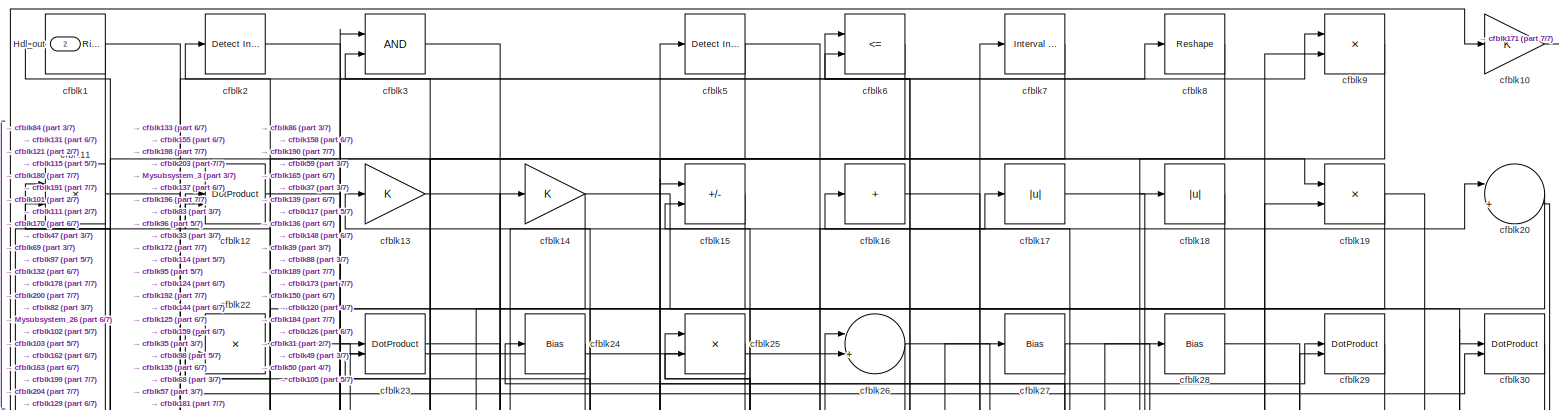
[diagram: root canvas - part 1/7, full width, top band]
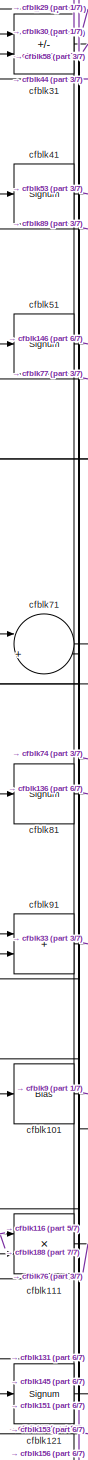
[diagram: root canvas - part 2/7, middle left region]
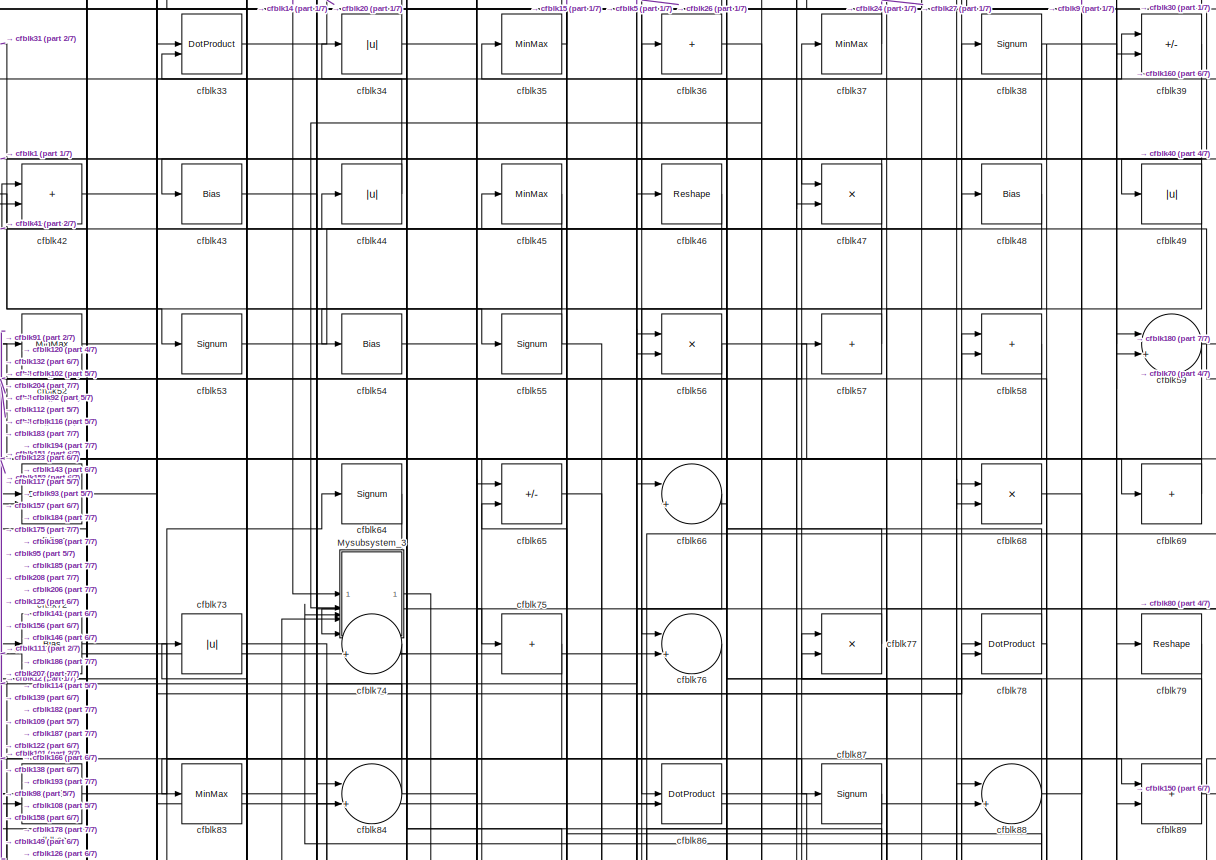
[diagram: root canvas - part 3/7, full width, top band]
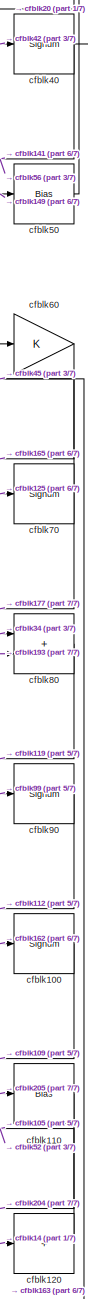
[diagram: root canvas - part 4/7, middle right region]
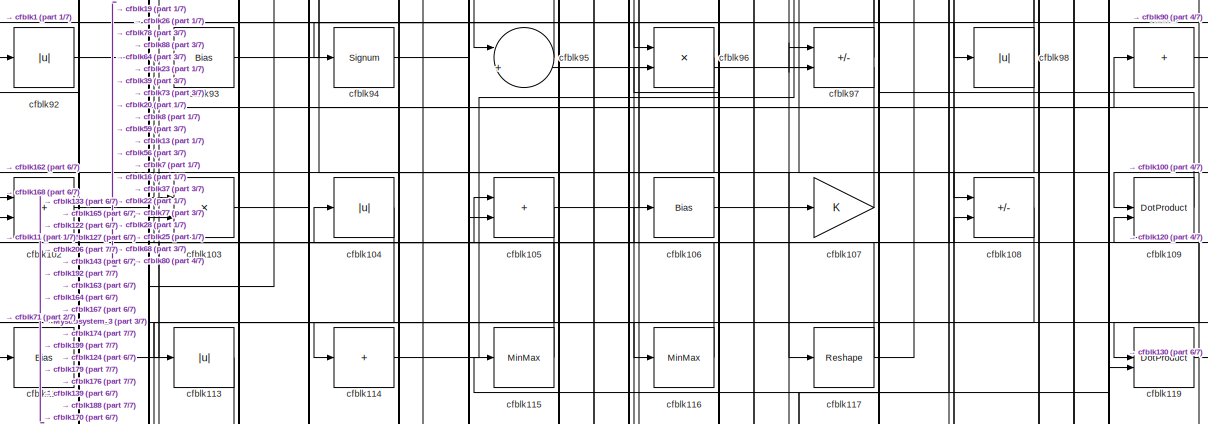
[diagram: root canvas - part 5/7, full width, middle band]
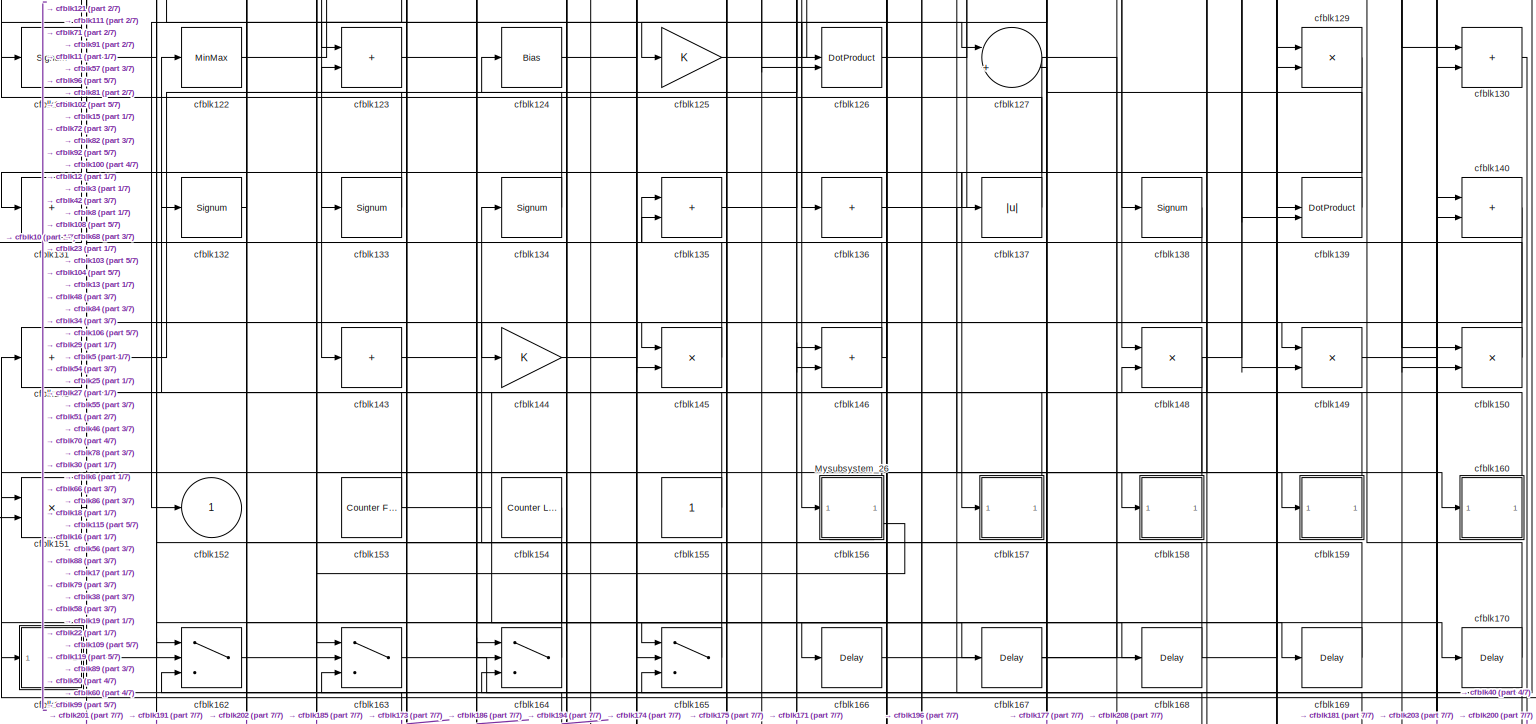
[diagram: root canvas - part 6/7, full width, bottom band]
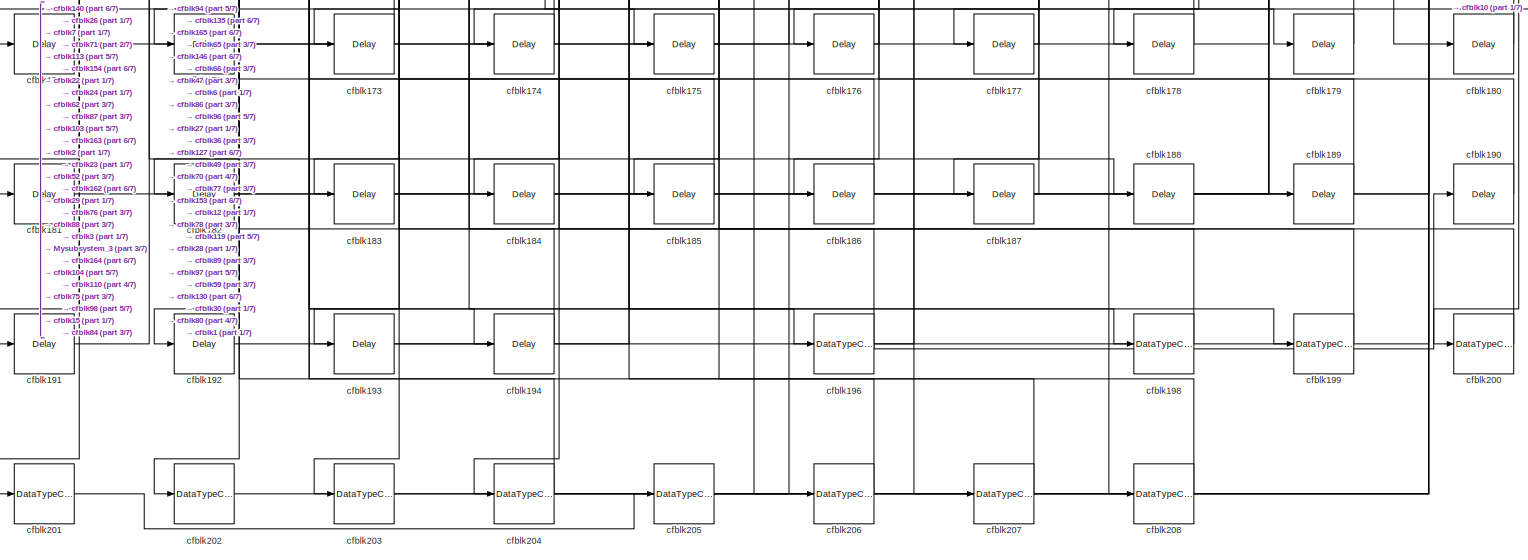
[diagram: root canvas - part 7/7, full width, bottom band]
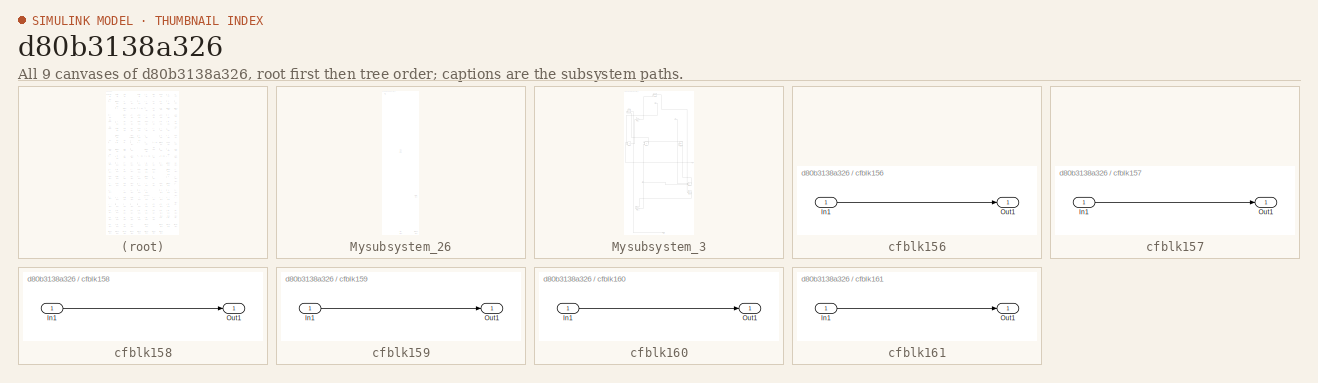
[diagram: thumbnail index - all 9 canvases of the model, root first then tree order]
MODEL slx_d80b3138a326
KIND model
CONFIG AbsTol = auto
CONFIG EnableMultiTasking = off
CONFIG FixedStep = auto
CONFIG MaxStep = auto
CONFIG MinStep = auto
CONFIG RelTol = 1e-3
CONFIG SampleTimeConstraint = Unconstrained
CONFIG SolverName = VariableStepAuto
CONFIG StartTime = 0.0
CONFIG StopTime = 10.0
BLOCK [Outport] Hdl_out
  OutDataTypeStr = uint8
  Port = 2
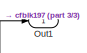
[diagram: Mysubsystem_26 - part 1/3, top left region]
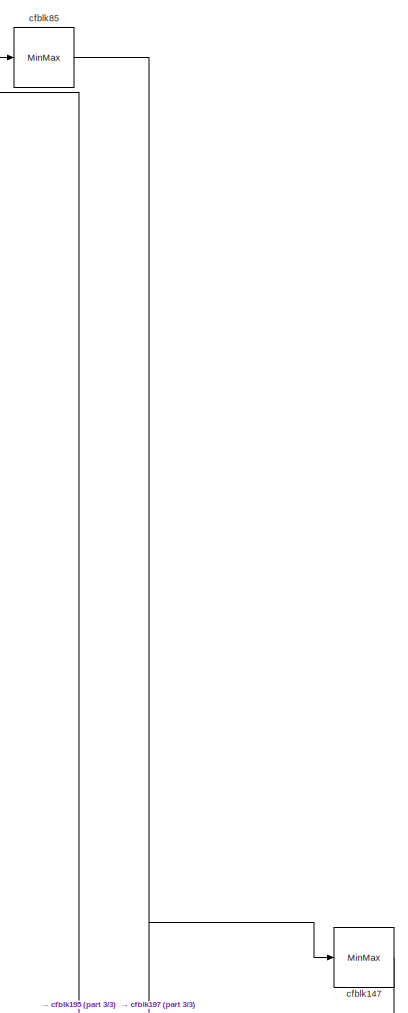
[diagram: Mysubsystem_26 - part 2/3, middle right region]
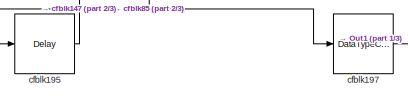
[diagram: Mysubsystem_26 - part 3/3, bottom right region]
BLOCK [SubSystem] Mysubsystem_26
  RTWFcnName = Mysubsystem_26
  RTWFcnNameOpts = User specified
  RTWFileNameOpts = Use function name
  RTWSystemCode = Reusable function
  TreatAsAtomicUnit = on
BLOCK [Outport] Mysubsystem_26/Out1
BLOCK [MinMax] Mysubsystem_26/cfblk147
BLOCK [Delay] Mysubsystem_26/cfblk195
  InputPortMap = u0
  SampleTime = 1
BLOCK [DataTypeConversion] Mysubsystem_26/cfblk197
  OutDataTypeStr = uint8
  RndMeth = Floor
  SaturateOnIntegerOverflow = off
BLOCK [MinMax] Mysubsystem_26/cfblk85
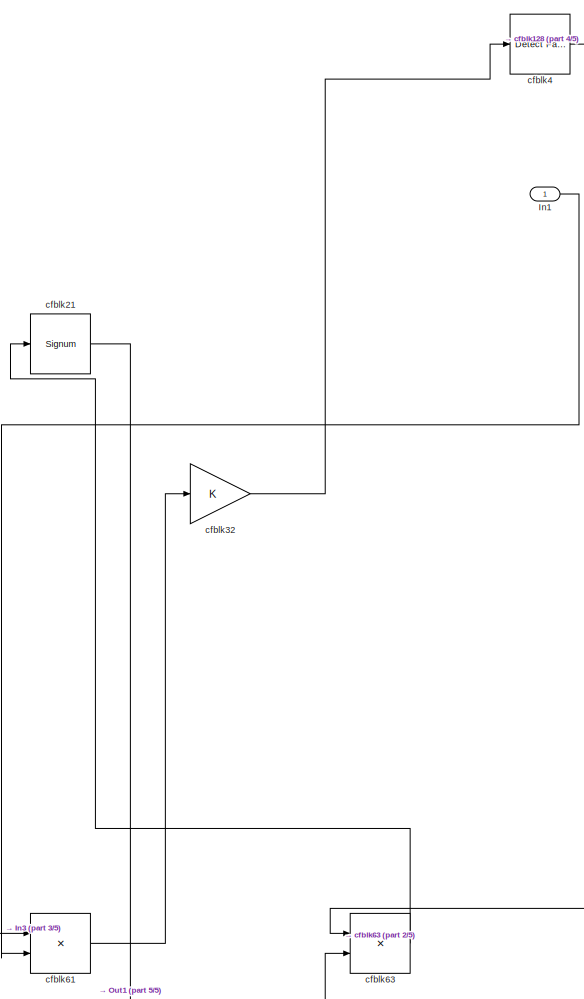
[diagram: Mysubsystem_3 - part 1/5, top left region]
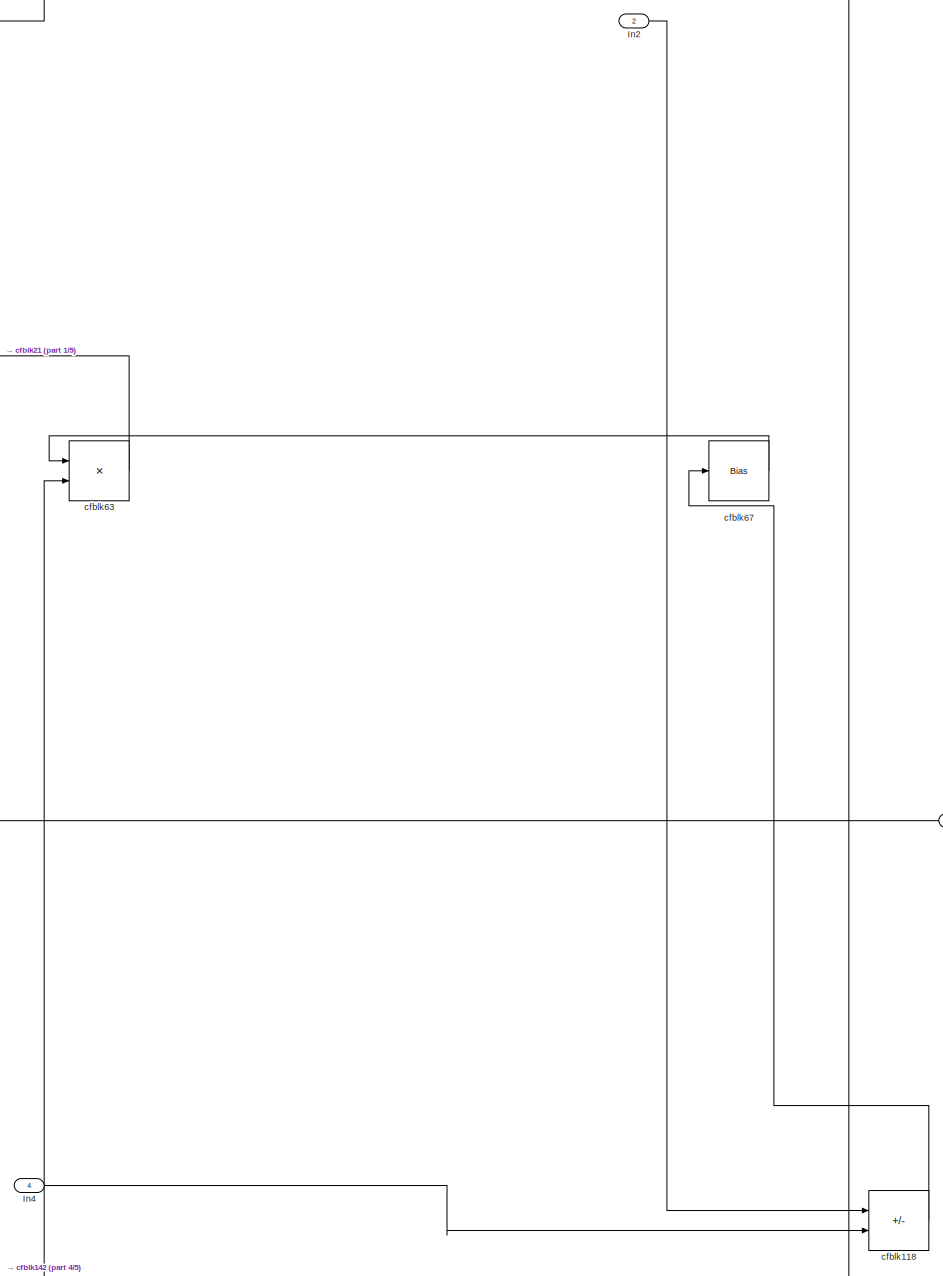
[diagram: Mysubsystem_3 - part 2/5, central region]
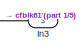
[diagram: Mysubsystem_3 - part 3/5, middle right region]
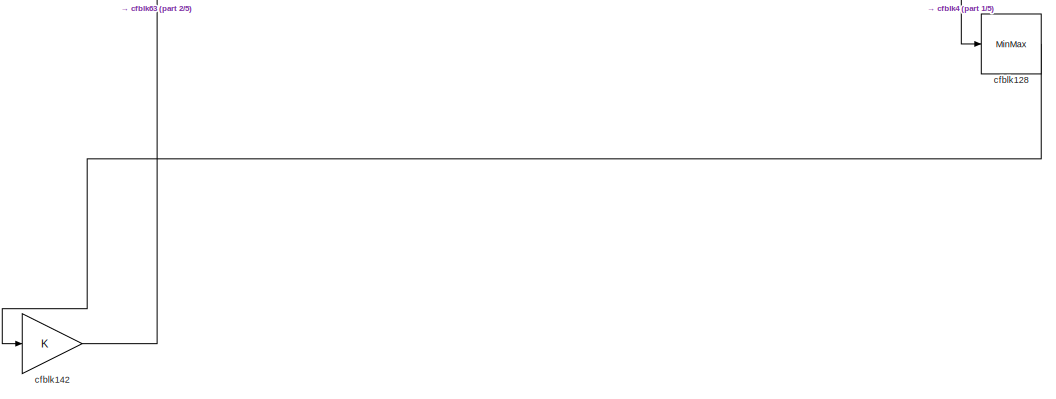
[diagram: Mysubsystem_3 - part 4/5, full width, bottom band]
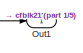
[diagram: Mysubsystem_3 - part 5/5, bottom center region]
BLOCK [SubSystem] Mysubsystem_3
  RTWFcnName = Mysubsystem_3
  RTWFcnNameOpts = User specified
  RTWFileNameOpts = Use function name
  RTWSystemCode = Reusable function
  TreatAsAtomicUnit = on
BLOCK [Inport] Mysubsystem_3/In1
BLOCK [Inport] Mysubsystem_3/In2
  Port = 2
BLOCK [Inport] Mysubsystem_3/In3
  Port = 3
BLOCK [Inport] Mysubsystem_3/In4
  Port = 4
BLOCK [Outport] Mysubsystem_3/Out1
BLOCK [Sum] Mysubsystem_3/cfblk118
  IconShape = rectangular
  Inputs = +-
BLOCK [MinMax] Mysubsystem_3/cfblk128
BLOCK [Gain] Mysubsystem_3/cfblk142
BLOCK [Signum] Mysubsystem_3/cfblk21
BLOCK [Gain] Mysubsystem_3/cfblk32
BLOCK [Reference] Mysubsystem_3/cfblk4  REF=hdlsllib/Logic and Bit
Operations/Detect Fall
Nonpositive
  SourceBlock = hdlsllib/Logic and Bit\nOperations/Detect Fall\nNonpositive
  SourceType = Detect Fall Nonpositive
BLOCK [Product] Mysubsystem_3/cfblk61
  Inputs = */
  RndMeth = Zero
  SaturateOnIntegerOverflow = on
BLOCK [Product] Mysubsystem_3/cfblk63
  Inputs = */
  RndMeth = Zero
  SaturateOnIntegerOverflow = on
BLOCK [Bias] Mysubsystem_3/cfblk67
  Bias = 0.0
  SaturateOnIntegerOverflow = off
BLOCK [Reference] cfblk1  REF=hdlsllib/Logic and Bit
Operations/Detect Rise
Positive
  SourceBlock = hdlsllib/Logic and Bit\nOperations/Detect Rise\nPositive
  SourceType = Detect Rise Positive
BLOCK [Gain] cfblk10
  OutDataTypeStr = uint8
BLOCK [Signum] cfblk100
BLOCK [Bias] cfblk101
  Bias = 0.0
  SaturateOnIntegerOverflow = off
BLOCK [Sum] cfblk102
  IconShape = rectangular
  OutDataTypeStr = uint8
BLOCK [Product] cfblk103
  Inputs = */
  OutDataTypeStr = uint8
  RndMeth = Zero
  SaturateOnIntegerOverflow = on
BLOCK [Abs] cfblk104
  OutDataTypeStr = uint8
  SaturateOnIntegerOverflow = off
BLOCK [Sum] cfblk105
  IconShape = rectangular
  OutDataTypeStr = uint8
BLOCK [Bias] cfblk106
  Bias = 0.0
  SaturateOnIntegerOverflow = off
BLOCK [Gain] cfblk107
  OutDataTypeStr = uint8
BLOCK [Sum] cfblk108
  IconShape = rectangular
  Inputs = +-
  OutDataTypeStr = uint8
BLOCK [DotProduct] cfblk109
  OutDataTypeStr = uint8
BLOCK [Product] cfblk11
  Inputs = */
  OutDataTypeStr = uint8
  RndMeth = Zero
  SaturateOnIntegerOverflow = on
BLOCK [Bias] cfblk110
  Bias = 0.0
  SaturateOnIntegerOverflow = off
BLOCK [Product] cfblk111
  Inputs = */
  OutDataTypeStr = uint8
  RndMeth = Zero
  SaturateOnIntegerOverflow = on
BLOCK [Bias] cfblk112
  Bias = 0.0
  SaturateOnIntegerOverflow = off
BLOCK [Abs] cfblk113
  OutDataTypeStr = uint8
  SaturateOnIntegerOverflow = off
BLOCK [Sum] cfblk114
  IconShape = rectangular
  Inputs = +
  OutDataTypeStr = uint8
BLOCK [MinMax] cfblk115
  OutDataTypeStr = uint8
BLOCK [MinMax] cfblk116
  OutDataTypeStr = uint8
BLOCK [Reshape] cfblk117
BLOCK [DotProduct] cfblk119
  OutDataTypeStr = uint8
BLOCK [DotProduct] cfblk12
  OutDataTypeStr = uint8
BLOCK [Sum] cfblk120
  IconShape = rectangular
  Inputs = +
  OutDataTypeStr = uint8
BLOCK [Signum] cfblk121
BLOCK [MinMax] cfblk122
  OutDataTypeStr = uint8
BLOCK [Sum] cfblk123
  IconShape = rectangular
  OutDataTypeStr = uint8
BLOCK [Bias] cfblk124
  Bias = 0.0
  SaturateOnIntegerOverflow = off
BLOCK [Gain] cfblk125
  OutDataTypeStr = uint8
BLOCK [DotProduct] cfblk126
  OutDataTypeStr = uint8
BLOCK [Sum] cfblk127
  Inputs = |++
  OutDataTypeStr = uint8
BLOCK [Product] cfblk129
  Inputs = */
  OutDataTypeStr = uint8
  RndMeth = Zero
  SaturateOnIntegerOverflow = on
BLOCK [Gain] cfblk13
  OutDataTypeStr = uint8
BLOCK [Sum] cfblk130
  IconShape = rectangular
  OutDataTypeStr = uint8
BLOCK [Sum] cfblk131
  IconShape = rectangular
  Inputs = +
  OutDataTypeStr = uint8
BLOCK [Signum] cfblk132
BLOCK [Signum] cfblk133
BLOCK [Signum] cfblk134
BLOCK [Sum] cfblk135
  IconShape = rectangular
  OutDataTypeStr = uint8
BLOCK [Sum] cfblk136
  IconShape = rectangular
  Inputs = +
  OutDataTypeStr = uint8
BLOCK [Abs] cfblk137
  OutDataTypeStr = uint8
  SaturateOnIntegerOverflow = off
BLOCK [Signum] cfblk138
BLOCK [DotProduct] cfblk139
  OutDataTypeStr = uint8
BLOCK [Gain] cfblk14
  OutDataTypeStr = uint8
BLOCK [Sum] cfblk140
  IconShape = rectangular
  OutDataTypeStr = uint8
BLOCK [Sum] cfblk141
  IconShape = rectangular
  Inputs = +
  OutDataTypeStr = uint8
BLOCK [Sum] cfblk143
  IconShape = rectangular
  Inputs = +
  OutDataTypeStr = uint8
BLOCK [Gain] cfblk144
  OutDataTypeStr = uint8
BLOCK [Product] cfblk145
  Inputs = */
  OutDataTypeStr = uint8
  RndMeth = Zero
  SaturateOnIntegerOverflow = on
BLOCK [Sum] cfblk146
  IconShape = rectangular
  OutDataTypeStr = uint8
BLOCK [Product] cfblk148
  Inputs = */
  OutDataTypeStr = uint8
  RndMeth = Zero
  SaturateOnIntegerOverflow = on
BLOCK [Product] cfblk149
  Inputs = */
  OutDataTypeStr = uint8
  RndMeth = Zero
  SaturateOnIntegerOverflow = on
BLOCK [Sum] cfblk15
  IconShape = rectangular
  Inputs = +-
  OutDataTypeStr = uint8
BLOCK [Product] cfblk150
  Inputs = */
  OutDataTypeStr = uint8
  RndMeth = Zero
  SaturateOnIntegerOverflow = on
BLOCK [Product] cfblk151
  Inputs = */
  OutDataTypeStr = uint8
  RndMeth = Zero
  SaturateOnIntegerOverflow = on
BLOCK [Outport] cfblk152
  OutDataTypeStr = uint8
  VectorParamsAs1DForOutWhenUnconnected = off
BLOCK [Reference] cfblk153  REF=hdlsllib/Sources/Counter
Free-Running
  SourceBlock = hdlsllib/Sources/Counter\nFree-Running
  SourceType = Counter Free-Running
BLOCK [Reference] cfblk154  REF=hdlsllib/Sources/Counter
Limited
  SourceBlock = hdlsllib/Sources/Counter\nLimited
  SourceType = Counter Limited
BLOCK [Constant] cfblk155
  OutDataTypeStr = uint8
  SampleTime = -1
BLOCK [SubSystem] cfblk156
  LibrarySourceBlock = hdlsllib/Ports &\nSubsystems/Subsystem
BLOCK [Inport] cfblk156/In1
BLOCK [Outport] cfblk156/Out1
BLOCK [SubSystem] cfblk157
  LibrarySourceBlock = hdlsllib/Ports &\nSubsystems/Subsystem
BLOCK [Inport] cfblk157/In1
BLOCK [Outport] cfblk157/Out1
BLOCK [SubSystem] cfblk158
  LibrarySourceBlock = hdlsllib/Ports &\nSubsystems/Subsystem
BLOCK [Inport] cfblk158/In1
BLOCK [Outport] cfblk158/Out1
BLOCK [SubSystem] cfblk159
  LibrarySourceBlock = hdlsllib/Ports &\nSubsystems/Subsystem
BLOCK [Inport] cfblk159/In1
BLOCK [Outport] cfblk159/Out1
BLOCK [Sum] cfblk16
  IconShape = rectangular
  Inputs = +
  OutDataTypeStr = uint8
BLOCK [SubSystem] cfblk160
  LibrarySourceBlock = hdlsllib/Ports &\nSubsystems/Subsystem
BLOCK [Inport] cfblk160/In1
BLOCK [Outport] cfblk160/Out1
BLOCK [SubSystem] cfblk161
  LibrarySourceBlock = hdlsllib/Ports &\nSubsystems/Subsystem
BLOCK [Inport] cfblk161/In1
BLOCK [Outport] cfblk161/Out1
BLOCK [Switch] cfblk162
  InputSameDT = off
  OutDataTypeStr = uint8
  SaturateOnIntegerOverflow = off
BLOCK [Switch] cfblk163
  InputSameDT = off
  OutDataTypeStr = uint8
  SaturateOnIntegerOverflow = off
BLOCK [Switch] cfblk164
  InputSameDT = off
  OutDataTypeStr = uint8
  SaturateOnIntegerOverflow = off
BLOCK [Switch] cfblk165
  InputSameDT = off
  OutDataTypeStr = uint8
  SaturateOnIntegerOverflow = off
BLOCK [Delay] cfblk166
  InputPortMap = u0
  SampleTime = 1
BLOCK [Delay] cfblk167
  InputPortMap = u0
  SampleTime = 1
BLOCK [Delay] cfblk168
  InputPortMap = u0
  SampleTime = 1
BLOCK [Delay] cfblk169
  InputPortMap = u0
  SampleTime = 1
BLOCK [Abs] cfblk17
  OutDataTypeStr = uint8
  SaturateOnIntegerOverflow = off
BLOCK [Delay] cfblk170
  InputPortMap = u0
  SampleTime = 1
BLOCK [Delay] cfblk171
  InputPortMap = u0
  SampleTime = 1
BLOCK [Delay] cfblk172
  InputPortMap = u0
  SampleTime = 1
BLOCK [Delay] cfblk173
  InputPortMap = u0
  SampleTime = 1
BLOCK [Delay] cfblk174
  InputPortMap = u0
  SampleTime = 1
BLOCK [Delay] cfblk175
  InputPortMap = u0
  SampleTime = 1
BLOCK [Delay] cfblk176
  InputPortMap = u0
  SampleTime = 1
BLOCK [Delay] cfblk177
  InputPortMap = u0
  SampleTime = 1
BLOCK [Delay] cfblk178
  InputPortMap = u0
  SampleTime = 1
BLOCK [Delay] cfblk179
  InputPortMap = u0
  SampleTime = 1
BLOCK [Abs] cfblk18
  OutDataTypeStr = uint8
  SaturateOnIntegerOverflow = off
BLOCK [Delay] cfblk180
  InputPortMap = u0
  SampleTime = 1
BLOCK [Delay] cfblk181
  InputPortMap = u0
  SampleTime = 1
BLOCK [Delay] cfblk182
  InputPortMap = u0
  SampleTime = 1
BLOCK [Delay] cfblk183
  InputPortMap = u0
  SampleTime = 1
BLOCK [Delay] cfblk184
  InputPortMap = u0
  SampleTime = 1
BLOCK [Delay] cfblk185
  InputPortMap = u0
  SampleTime = 1
BLOCK [Delay] cfblk186
  InputPortMap = u0
  SampleTime = 1
BLOCK [Delay] cfblk187
  InputPortMap = u0
  SampleTime = 1
BLOCK [Delay] cfblk188
  InputPortMap = u0
  SampleTime = 1
BLOCK [Delay] cfblk189
  InputPortMap = u0
  SampleTime = 1
BLOCK [Product] cfblk19
  Inputs = */
  OutDataTypeStr = uint8
  RndMeth = Zero
  SaturateOnIntegerOverflow = on
BLOCK [Delay] cfblk190
  InputPortMap = u0
  SampleTime = 1
BLOCK [Delay] cfblk191
  InputPortMap = u0
  SampleTime = 1
BLOCK [Delay] cfblk192
  InputPortMap = u0
  SampleTime = 1
BLOCK [Delay] cfblk193
  InputPortMap = u0
  SampleTime = 1
BLOCK [Delay] cfblk194
  InputPortMap = u0
  SampleTime = 1
BLOCK [DataTypeConversion] cfblk196
  OutDataTypeStr = uint8
  RndMeth = Floor
  SaturateOnIntegerOverflow = off
BLOCK [DataTypeConversion] cfblk198
  OutDataTypeStr = uint8
  RndMeth = Floor
  SaturateOnIntegerOverflow = off
BLOCK [DataTypeConversion] cfblk199
  OutDataTypeStr = uint8
  RndMeth = Floor
  SaturateOnIntegerOverflow = off
BLOCK [Reference] cfblk2  REF=simulink/Logic and Bit
Operations/Detect
Increase
  LibrarySourceBlock = hdlsllib/Logic and Bit\nOperations/Detect\nIncrease
  SourceBlock = simulink/Logic and Bit\nOperations/Detect\nIncrease
  SourceType = Detect Increase
BLOCK [Sum] cfblk20
  Inputs = |++
  OutDataTypeStr = uint8
BLOCK [DataTypeConversion] cfblk200
  OutDataTypeStr = uint8
  RndMeth = Floor
  SaturateOnIntegerOverflow = off
BLOCK [DataTypeConversion] cfblk201
  OutDataTypeStr = uint8
  RndMeth = Floor
  SaturateOnIntegerOverflow = off
BLOCK [DataTypeConversion] cfblk202
  OutDataTypeStr = uint8
  RndMeth = Floor
  SaturateOnIntegerOverflow = off
BLOCK [DataTypeConversion] cfblk203
  OutDataTypeStr = uint8
  RndMeth = Floor
  SaturateOnIntegerOverflow = off
BLOCK [DataTypeConversion] cfblk204
  OutDataTypeStr = uint8
  RndMeth = Floor
  SaturateOnIntegerOverflow = off
BLOCK [DataTypeConversion] cfblk205
  OutDataTypeStr = uint8
  RndMeth = Floor
  SaturateOnIntegerOverflow = off
BLOCK [DataTypeConversion] cfblk206
  OutDataTypeStr = uint8
  RndMeth = Floor
  SaturateOnIntegerOverflow = off
BLOCK [DataTypeConversion] cfblk207
  OutDataTypeStr = uint8
  RndMeth = Floor
  SaturateOnIntegerOverflow = off
BLOCK [DataTypeConversion] cfblk208
  OutDataTypeStr = uint8
  RndMeth = Floor
  SaturateOnIntegerOverflow = off
BLOCK [Product] cfblk22
  Inputs = */
  OutDataTypeStr = uint8
  RndMeth = Zero
  SaturateOnIntegerOverflow = on
BLOCK [DotProduct] cfblk23
  OutDataTypeStr = uint8
BLOCK [Bias] cfblk24
  Bias = 0.0
  SaturateOnIntegerOverflow = off
BLOCK [Product] cfblk25
  Inputs = */
  OutDataTypeStr = uint8
  RndMeth = Zero
  SaturateOnIntegerOverflow = on
BLOCK [Sum] cfblk26
  Inputs = |++
  OutDataTypeStr = uint8
BLOCK [Bias] cfblk27
  Bias = 0.0
  SaturateOnIntegerOverflow = off
BLOCK [Bias] cfblk28
  Bias = 0.0
  SaturateOnIntegerOverflow = off
BLOCK [DotProduct] cfblk29
  OutDataTypeStr = uint8
BLOCK [Logic] cfblk3
  AllPortsSameDT = off
  OutDataTypeStr = boolean
BLOCK [DotProduct] cfblk30
  OutDataTypeStr = uint8
BLOCK [Sum] cfblk31
  IconShape = rectangular
  Inputs = +-
  OutDataTypeStr = uint8
BLOCK [DotProduct] cfblk33
  OutDataTypeStr = uint8
BLOCK [Abs] cfblk34
  OutDataTypeStr = uint8
  SaturateOnIntegerOverflow = off
BLOCK [MinMax] cfblk35
  OutDataTypeStr = uint8
BLOCK [Sum] cfblk36
  IconShape = rectangular
  Inputs = +
  OutDataTypeStr = uint8
BLOCK [MinMax] cfblk37
  OutDataTypeStr = uint8
BLOCK [Signum] cfblk38
BLOCK [Sum] cfblk39
  IconShape = rectangular
  Inputs = +-
  OutDataTypeStr = uint8
BLOCK [Signum] cfblk40
BLOCK [Signum] cfblk41
BLOCK [Sum] cfblk42
  IconShape = rectangular
  OutDataTypeStr = uint8
BLOCK [Bias] cfblk43
  Bias = 0.0
  SaturateOnIntegerOverflow = off
BLOCK [Abs] cfblk44
  OutDataTypeStr = uint8
  SaturateOnIntegerOverflow = off
BLOCK [MinMax] cfblk45
  OutDataTypeStr = uint8
BLOCK [Reshape] cfblk46
BLOCK [Product] cfblk47
  Inputs = */
  OutDataTypeStr = uint8
  RndMeth = Zero
  SaturateOnIntegerOverflow = on
BLOCK [Bias] cfblk48
  Bias = 0.0
  SaturateOnIntegerOverflow = off
BLOCK [Abs] cfblk49
  OutDataTypeStr = uint8
  SaturateOnIntegerOverflow = off
BLOCK [Reference] cfblk5  REF=simulink/Logic and Bit
Operations/Detect
Increase
  LibrarySourceBlock = hdlsllib/Logic and Bit\nOperations/Detect\nIncrease
  SourceBlock = simulink/Logic and Bit\nOperations/Detect\nIncrease
  SourceType = Detect Increase
BLOCK [Bias] cfblk50
  Bias = 0.0
  SaturateOnIntegerOverflow = off
BLOCK [Signum] cfblk51
BLOCK [MinMax] cfblk52
  OutDataTypeStr = uint8
BLOCK [Signum] cfblk53
BLOCK [Bias] cfblk54
  Bias = 0.0
  SaturateOnIntegerOverflow = off
BLOCK [Signum] cfblk55
BLOCK [Product] cfblk56
  Inputs = */
  OutDataTypeStr = uint8
  RndMeth = Zero
  SaturateOnIntegerOverflow = on
BLOCK [Sum] cfblk57
  IconShape = rectangular
  Inputs = +
  OutDataTypeStr = uint8
BLOCK [Sum] cfblk58
  IconShape = rectangular
  OutDataTypeStr = uint8
BLOCK [Sum] cfblk59
  Inputs = |++
  OutDataTypeStr = uint8
BLOCK [RelationalOperator] cfblk6
  InputSameDT = off
  Operator = <=
  OutDataTypeStr = boolean
BLOCK [Gain] cfblk60
  OutDataTypeStr = uint8
BLOCK [DotProduct] cfblk62
  OutDataTypeStr = uint8
BLOCK [Signum] cfblk64
BLOCK [Sum] cfblk65
  IconShape = rectangular
  Inputs = +-
  OutDataTypeStr = uint8
BLOCK [Sum] cfblk66
  Inputs = |++
  OutDataTypeStr = uint8
BLOCK [Product] cfblk68
  Inputs = */
  OutDataTypeStr = uint8
  RndMeth = Zero
  SaturateOnIntegerOverflow = on
BLOCK [Sum] cfblk69
  IconShape = rectangular
  Inputs = +
  OutDataTypeStr = uint8
BLOCK [Reference] cfblk7  REF=hdlsllib/Logic and Bit
Operations/Interval Test
  SourceBlock = hdlsllib/Logic and Bit\nOperations/Interval Test
  SourceType = Interval Test
BLOCK [Signum] cfblk70
BLOCK [Sum] cfblk71
  Inputs = |++
  OutDataTypeStr = uint8
BLOCK [Bias] cfblk72
  Bias = 0.0
  SaturateOnIntegerOverflow = off
BLOCK [Abs] cfblk73
  OutDataTypeStr = uint8
  SaturateOnIntegerOverflow = off
BLOCK [Sum] cfblk74
  Inputs = |++
  OutDataTypeStr = uint8
BLOCK [Sum] cfblk75
  IconShape = rectangular
  Inputs = +
  OutDataTypeStr = uint8
BLOCK [Sum] cfblk76
  Inputs = |++
  OutDataTypeStr = uint8
BLOCK [Product] cfblk77
  Inputs = */
  OutDataTypeStr = uint8
  RndMeth = Zero
  SaturateOnIntegerOverflow = on
BLOCK [DotProduct] cfblk78
  OutDataTypeStr = uint8
BLOCK [Reshape] cfblk79
BLOCK [Reshape] cfblk8
BLOCK [Sum] cfblk80
  IconShape = rectangular
  OutDataTypeStr = uint8
BLOCK [Signum] cfblk81
BLOCK [DotProduct] cfblk82
  OutDataTypeStr = uint8
BLOCK [MinMax] cfblk83
  OutDataTypeStr = uint8
BLOCK [Sum] cfblk84
  Inputs = |++
  OutDataTypeStr = uint8
BLOCK [DotProduct] cfblk86
  OutDataTypeStr = uint8
BLOCK [Signum] cfblk87
BLOCK [Sum] cfblk88
  Inputs = |++
  OutDataTypeStr = uint8
BLOCK [Sum] cfblk89
  IconShape = rectangular
  OutDataTypeStr = uint8
BLOCK [Product] cfblk9
  Inputs = */
  OutDataTypeStr = uint8
  RndMeth = Zero
  SaturateOnIntegerOverflow = on
BLOCK [Signum] cfblk90
BLOCK [Sum] cfblk91
  IconShape = rectangular
  OutDataTypeStr = uint8
BLOCK [Abs] cfblk92
  OutDataTypeStr = uint8
  SaturateOnIntegerOverflow = off
BLOCK [Bias] cfblk93
  Bias = 0.0
  SaturateOnIntegerOverflow = off
BLOCK [Signum] cfblk94
BLOCK [Sum] cfblk95
  Inputs = |++
  OutDataTypeStr = uint8
BLOCK [Product] cfblk96
  Inputs = */
  OutDataTypeStr = uint8
  RndMeth = Zero
  SaturateOnIntegerOverflow = on
BLOCK [Sum] cfblk97
  IconShape = rectangular
  Inputs = +-
  OutDataTypeStr = uint8
BLOCK [Abs] cfblk98
  OutDataTypeStr = uint8
  SaturateOnIntegerOverflow = off
BLOCK [Sum] cfblk99
  IconShape = rectangular
  Inputs = +
  OutDataTypeStr = uint8
LINE Mysubsystem_26/cfblk147:1 -> Mysubsystem_26/cfblk195:1
LINE Mysubsystem_26/cfblk195:1 -> Mysubsystem_26/cfblk85:1
LINE Mysubsystem_26/cfblk197:1 -> Mysubsystem_26/Out1:1
NET Mysubsystem_26/cfblk85:1 -> Mysubsystem_26/cfblk147:1, Mysubsystem_26/cfblk197:1
LINE Mysubsystem_26:1 -> cfblk3:1
LINE Mysubsystem_3/In1:1 -> Mysubsystem_3/cfblk61:2
LINE Mysubsystem_3/In2:1 -> Mysubsystem_3/cfblk118:1
LINE Mysubsystem_3/In3:1 -> Mysubsystem_3/cfblk61:1
LINE Mysubsystem_3/In4:1 -> Mysubsystem_3/cfblk118:2
LINE Mysubsystem_3/cfblk118:1 -> Mysubsystem_3/cfblk67:1
LINE Mysubsystem_3/cfblk128:1 -> Mysubsystem_3/cfblk142:1
LINE Mysubsystem_3/cfblk142:1 -> Mysubsystem_3/cfblk63:2
LINE Mysubsystem_3/cfblk21:1 -> Mysubsystem_3/Out1:1
LINE Mysubsystem_3/cfblk32:1 -> Mysubsystem_3/cfblk4:1
LINE Mysubsystem_3/cfblk4:1 -> Mysubsystem_3/cfblk128:1
LINE Mysubsystem_3/cfblk61:1 -> Mysubsystem_3/cfblk32:1
LINE Mysubsystem_3/cfblk63:1 -> Mysubsystem_3/cfblk21:1
LINE Mysubsystem_3/cfblk67:1 -> Mysubsystem_3/cfblk63:1
LINE Mysubsystem_3:1 -> cfblk175:1
LINE cfblk100:1 -> cfblk109:1
LINE cfblk101:1 -> cfblk9:1
NET cfblk102:1 -> cfblk26:2, cfblk88:2
LINE cfblk103:1 -> cfblk167:1
LINE cfblk104:1 -> cfblk164:2
NET cfblk105:1 -> cfblk113:1, cfblk7:1
LINE cfblk106:1 -> cfblk107:1
LINE cfblk107:1 -> cfblk95:2
LINE cfblk108:1 -> cfblk143:1
LINE cfblk109:1 -> cfblk77:1
LINE cfblk10:1 -> cfblk171:1
LINE cfblk110:1 -> cfblk204:1
NET cfblk111:1 -> cfblk30:2, cfblk76:2
NET cfblk112:1 -> cfblk56:1, cfblk64:1
LINE cfblk113:1 -> cfblk192:1
LINE cfblk114:1 -> cfblk37:1
LINE cfblk115:1 -> cfblk11:1
LINE cfblk116:1 -> cfblk73:1
NET cfblk117:1 -> cfblk28:1, cfblk93:1
LINE cfblk119:1 -> cfblk130:1
LINE cfblk11:1 -> cfblk170:1
NET cfblk120:1 -> cfblk105:1, cfblk52:1
NET cfblk121:1 -> Hdl_out:1, cfblk11:2, cfblk131:1, cfblk58:2
NET cfblk122:1 -> cfblk108:2, cfblk68:1
NET cfblk123:1 -> cfblk168:1, cfblk84:2
NET cfblk124:1 -> cfblk106:1, cfblk5:1
NET cfblk125:1 -> cfblk70:1, cfblk78:1
LINE cfblk126:1 -> cfblk79:1
NET cfblk127:1 -> cfblk161:1, cfblk169:1
LINE cfblk129:1 -> cfblk157:1
LINE cfblk12:1 -> cfblk163:1
LINE cfblk130:1 -> cfblk200:1
LINE cfblk131:1 -> cfblk10:1
LINE cfblk132:1 -> cfblk72:1
LINE cfblk133:1 -> cfblk102:2
LINE cfblk134:1 -> cfblk124:1
LINE cfblk135:1 -> cfblk17:1
NET cfblk136:1 -> cfblk159:1, cfblk18:1
LINE cfblk137:1 -> cfblk81:1
LINE cfblk138:1 -> cfblk145:1
NET cfblk139:1 -> cfblk115:1, cfblk16:1
LINE cfblk13:1 -> cfblk137:1
LINE cfblk140:1 -> cfblk201:1
LINE cfblk141:1 -> cfblk46:1
LINE cfblk143:1 -> cfblk48:1
LINE cfblk144:1 -> cfblk29:1
LINE cfblk145:1 -> cfblk91:1
NET cfblk146:1 -> cfblk135:1, cfblk66:2
NET cfblk148:1 -> cfblk166:1, cfblk19:2
LINE cfblk149:1 -> cfblk50:1
NET cfblk14:1 -> Mysubsystem_3:1, cfblk120:1
LINE cfblk150:1 -> cfblk42:1
LINE cfblk151:1 -> cfblk71:1
NET cfblk153:1 -> cfblk111:2, cfblk148:2, cfblk208:1
LINE cfblk154:1 -> cfblk202:1
NET cfblk155:1 -> cfblk151:1, cfblk23:2
LINE cfblk156/In1:1 -> cfblk156/Out1:1
NET cfblk156:1 -> cfblk122:1, cfblk71:2
LINE cfblk157/In1:1 -> cfblk157/Out1:1
NET cfblk157:1 -> cfblk34:1, cfblk82:2
LINE cfblk158/In1:1 -> cfblk158/Out1:1
LINE cfblk158:1 -> cfblk6:1
LINE cfblk159/In1:1 -> cfblk159/Out1:1
LINE cfblk159:1 -> cfblk25:1
LINE cfblk15:1 -> cfblk132:1
LINE cfblk160/In1:1 -> cfblk160/Out1:1
LINE cfblk160:1 -> cfblk58:1
LINE cfblk161/In1:1 -> cfblk161/Out1:1
LINE cfblk161:1 -> cfblk57:1
NET cfblk162:1 -> cfblk100:1, cfblk8:1
NET cfblk163:1 -> cfblk60:1, cfblk99:1
LINE cfblk164:1 -> cfblk134:1
LINE cfblk165:1 -> cfblk92:1
LINE cfblk166:1 -> cfblk88:1
LINE cfblk167:1 -> cfblk129:1
LINE cfblk168:1 -> cfblk102:1
LINE cfblk169:1 -> cfblk123:2
LINE cfblk16:1 -> cfblk98:1
LINE cfblk170:1 -> cfblk109:2
LINE cfblk171:1 -> cfblk146:1
LINE cfblk172:1 -> cfblk29:2
LINE cfblk173:1 -> cfblk162:3
LINE cfblk174:1 -> cfblk164:3
LINE cfblk175:1 -> cfblk135:2
LINE cfblk176:1 -> cfblk96:2
LINE cfblk177:1 -> cfblk127:2
LINE cfblk178:1 -> cfblk12:2
LINE cfblk179:1 -> cfblk97:1
NET cfblk17:1 -> cfblk148:1, cfblk19:1
LINE cfblk180:1 -> cfblk1:1
LINE cfblk181:1 -> cfblk130:2
LINE cfblk182:1 -> cfblk84:1
LINE cfblk183:1 -> cfblk89:2
LINE cfblk184:1 -> cfblk30:1
LINE cfblk185:1 -> cfblk163:2
LINE cfblk186:1 -> cfblk163:3
LINE cfblk187:1 -> cfblk77:2
LINE cfblk188:1 -> cfblk119:2
LINE cfblk189:1 -> cfblk22:2
LINE cfblk18:1 -> cfblk125:1
LINE cfblk190:1 -> cfblk6:2
LINE cfblk191:1 -> cfblk162:1
LINE cfblk192:1 -> cfblk15:1
LINE cfblk193:1 -> cfblk80:2
LINE cfblk194:1 -> cfblk164:1
NET cfblk196:1 -> cfblk165:3, cfblk190:1, cfblk27:1
LINE cfblk198:1 -> cfblk3:2
LINE cfblk199:1 -> cfblk104:1
NET cfblk19:1 -> cfblk103:2, cfblk150:1
NET cfblk1:1 -> cfblk47:2, cfblk69:1, cfblk97:2
LINE cfblk200:1 -> cfblk2:1
LINE cfblk201:1 -> cfblk205:1
LINE cfblk202:1 -> cfblk140:1
LINE cfblk203:1 -> cfblk140:2
NET cfblk204:1 -> cfblk23:1, cfblk66:1
LINE cfblk205:1 -> cfblk110:1
NET cfblk206:1 -> cfblk103:1, cfblk62:2
LINE cfblk207:1 -> cfblk65:1
LINE cfblk208:1 -> cfblk65:2
LINE cfblk20:1 -> cfblk114:1
LINE cfblk22:1 -> cfblk129:2
LINE cfblk23:1 -> cfblk96:1
LINE cfblk24:1 -> cfblk172:1
LINE cfblk25:1 -> cfblk144:1
NET cfblk26:1 -> cfblk181:1, cfblk59:1, cfblk86:1
NET cfblk27:1 -> cfblk165:1, cfblk39:2
LINE cfblk28:1 -> cfblk189:1
NET cfblk29:1 -> cfblk121:1, cfblk173:1
LINE cfblk2:1 -> cfblk199:1
NET cfblk30:1 -> cfblk126:1, cfblk31:2, cfblk49:1
LINE cfblk31:1 -> cfblk55:1
LINE cfblk33:1 -> cfblk20:1
LINE cfblk34:1 -> cfblk80:1
LINE cfblk35:1 -> cfblk15:2
NET cfblk36:1 -> Mysubsystem_3:2, cfblk207:1
LINE cfblk37:1 -> cfblk24:1
NET cfblk38:1 -> cfblk149:2, cfblk158:1, cfblk42:2, cfblk59:2
LINE cfblk39:1 -> cfblk76:1
LINE cfblk3:1 -> cfblk196:1
NET cfblk40:1 -> cfblk141:1, cfblk56:2
LINE cfblk41:1 -> cfblk53:1
NET cfblk42:1 -> cfblk160:1, cfblk40:1
LINE cfblk43:1 -> cfblk75:1
LINE cfblk44:1 -> cfblk31:1
LINE cfblk45:1 -> cfblk54:1
LINE cfblk46:1 -> cfblk156:1
NET cfblk47:1 -> cfblk185:1, cfblk186:1, cfblk43:1
NET cfblk48:1 -> cfblk123:1, cfblk74:2
NET cfblk49:1 -> cfblk187:1, cfblk47:1
LINE cfblk50:1 -> cfblk20:2
LINE cfblk51:1 -> cfblk146:2
NET cfblk52:1 -> Mysubsystem_3:4, cfblk194:1
LINE cfblk53:1 -> cfblk38:1
LINE cfblk54:1 -> cfblk149:1
NET cfblk55:1 -> cfblk126:2, cfblk33:2
NET cfblk56:1 -> cfblk151:2, cfblk152:1
LINE cfblk57:1 -> cfblk26:1
LINE cfblk58:1 -> cfblk91:2
NET cfblk59:1 -> cfblk180:1, cfblk95:1
NET cfblk5:1 -> cfblk133:1, cfblk68:2, cfblk83:1
LINE cfblk60:1 -> cfblk165:2
LINE cfblk62:1 -> cfblk44:1
LINE cfblk64:1 -> cfblk74:1
LINE cfblk65:1 -> cfblk206:1
LINE cfblk66:1 -> cfblk86:2
NET cfblk68:1 -> cfblk108:1, cfblk139:2
LINE cfblk69:1 -> cfblk62:1
LINE cfblk6:1 -> cfblk203:1
NET cfblk70:1 -> cfblk177:1, cfblk45:1
NET cfblk71:1 -> cfblk111:1, cfblk116:1, cfblk145:2, cfblk188:1
LINE cfblk72:1 -> cfblk89:1
LINE cfblk73:1 -> cfblk117:1
LINE cfblk74:1 -> cfblk101:1
LINE cfblk75:1 -> cfblk184:1
LINE cfblk76:1 -> cfblk183:1
LINE cfblk77:1 -> cfblk51:1
NET cfblk78:1 -> cfblk178:1, cfblk36:1
LINE cfblk79:1 -> cfblk138:1
LINE cfblk7:1 -> cfblk191:1
LINE cfblk80:1 -> cfblk119:1
LINE cfblk81:1 -> cfblk136:1
LINE cfblk82:1 -> cfblk87:1
LINE cfblk83:1 -> cfblk14:1
NET cfblk84:1 -> cfblk12:1, cfblk198:1
NET cfblk86:1 -> cfblk139:1, cfblk176:1
LINE cfblk87:1 -> cfblk182:1
NET cfblk88:1 -> cfblk193:1, cfblk35:1, cfblk9:2
NET cfblk89:1 -> cfblk150:2, cfblk41:1
LINE cfblk8:1 -> cfblk105:2
LINE cfblk90:1 -> cfblk112:1
LINE cfblk91:1 -> cfblk33:1
NET cfblk92:1 -> cfblk127:1, cfblk78:2
LINE cfblk93:1 -> cfblk39:1
LINE cfblk94:1 -> cfblk179:1
NET cfblk95:1 -> cfblk13:1, cfblk94:1
LINE cfblk96:1 -> cfblk162:2
LINE cfblk97:1 -> cfblk22:1
NET cfblk98:1 -> Mysubsystem_3:3, cfblk174:1, cfblk25:2
LINE cfblk99:1 -> cfblk90:1
LINE cfblk9:1 -> cfblk82:1
note: NET lines group one-source signal fan-out (src -> all destinations, sorted); 1:1 wires keep LINE
